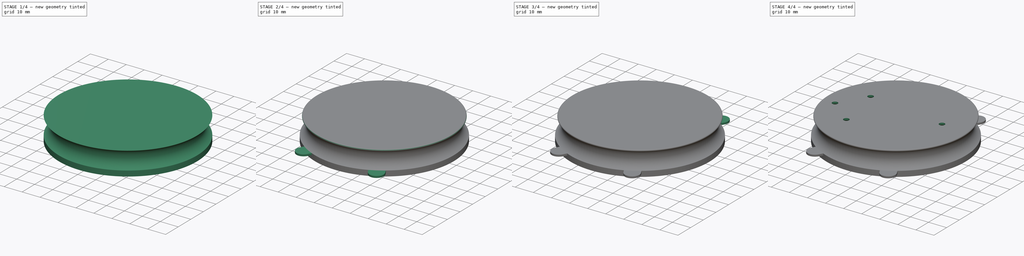
[diagram: build sequence overview — one tinted view per stage of 4, left to right]
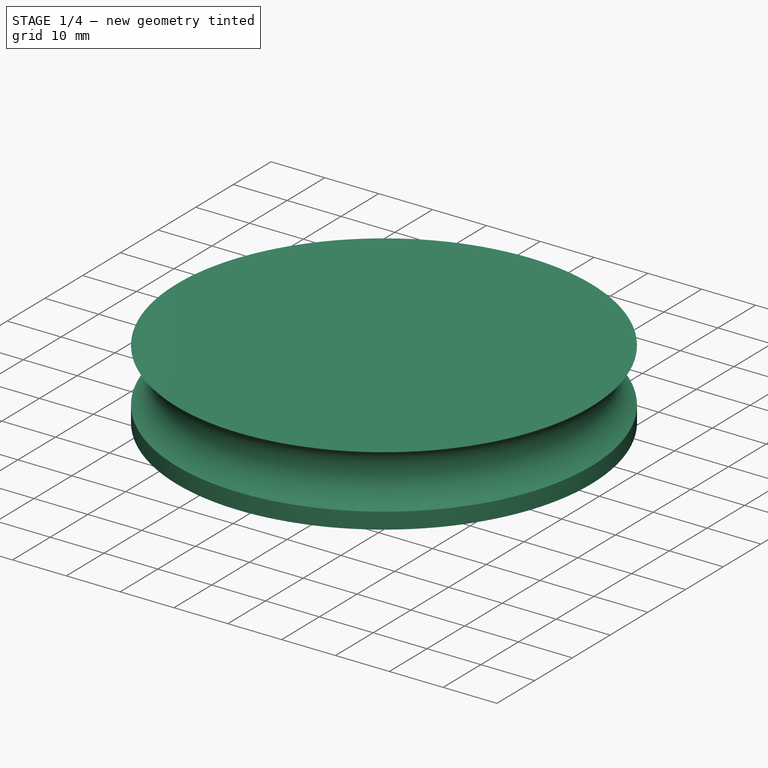
[diagram: stage 1 of 4 — iso view after this stage's code; geometry added in this stage tinted green]
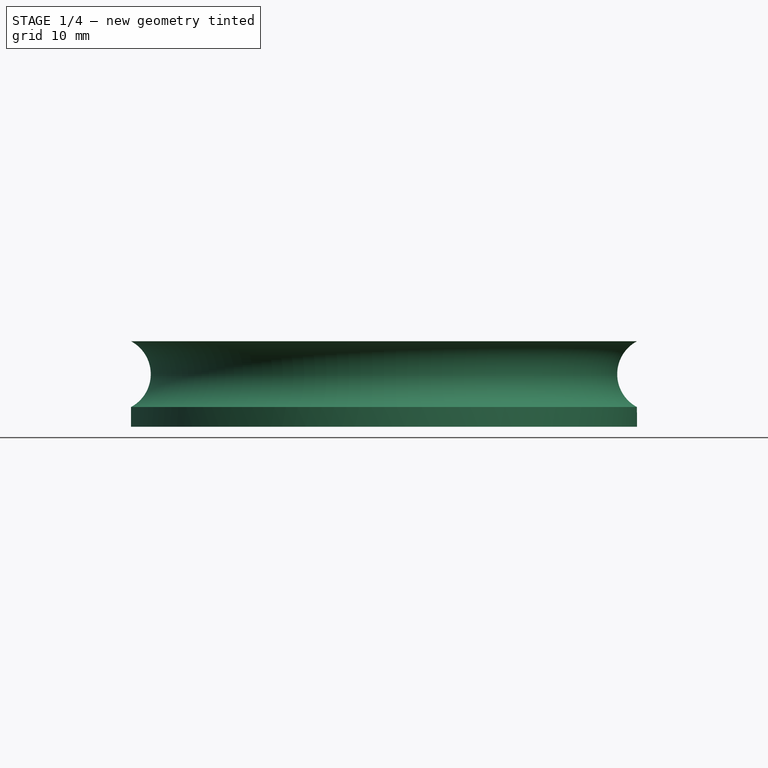
[diagram: stage 1 of 4 — front view after this stage's code; geometry added in this stage tinted green]
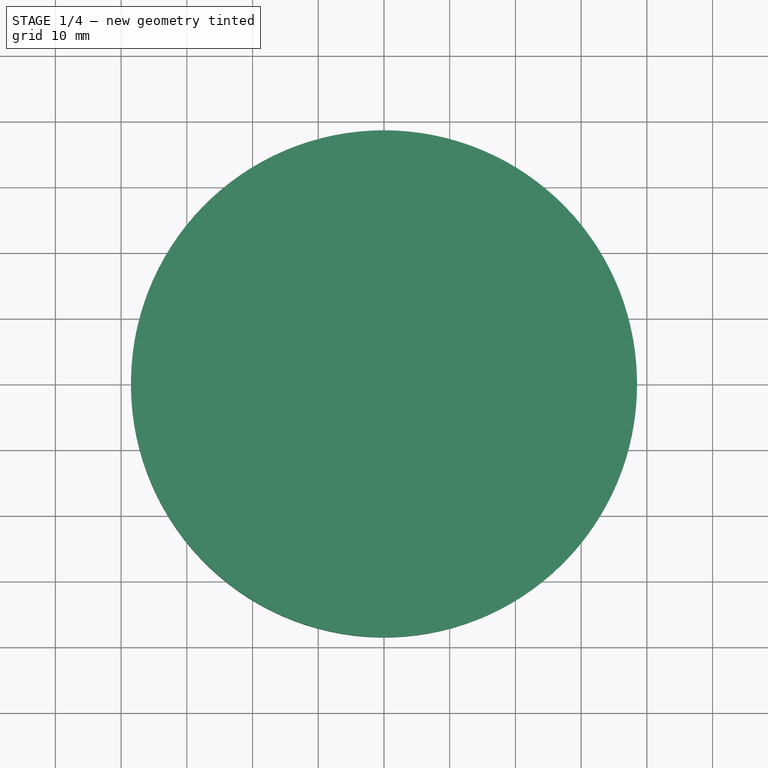
[diagram: stage 1 of 4 — top view after this stage's code; geometry added in this stage tinted green]
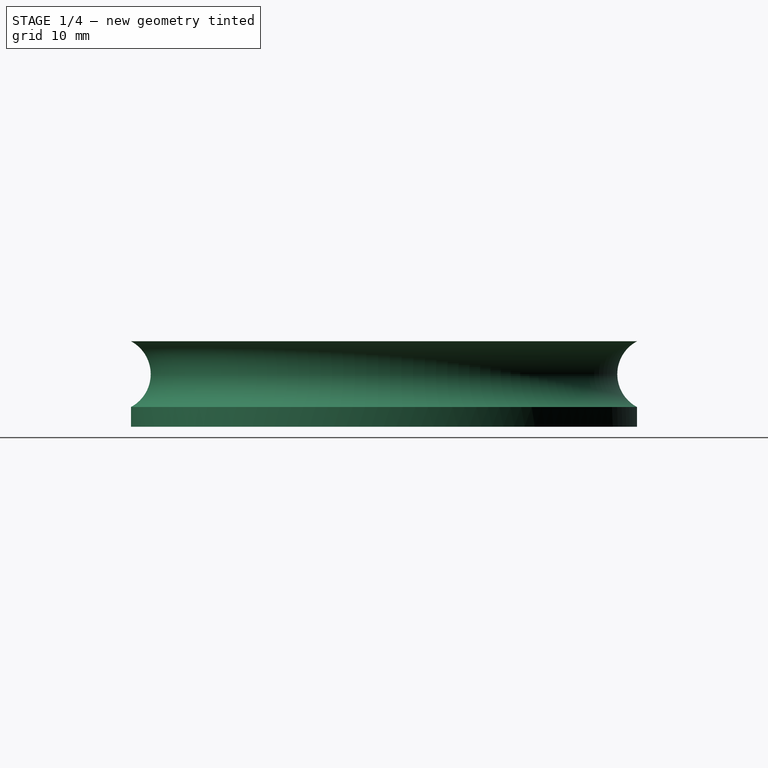
[diagram: stage 1 of 4 — right view after this stage's code; geometry added in this stage tinted green]
FCSTD DOCUMENT  (FreeCAD 1.0R39319 (Git))
Label: Stack_Module_Cover_insert
License: All rights reserved
LicenseURL: https://en.wikipedia.org/wiki/All_rights_reserved
objects: Sketcher::SketchObject×5, PartDesign::Pad×2, PartDesign::Pocket×2, PartDesign::Chamfer×2, PartDesign::Revolution×1, PartDesign::Fillet×1, PartDesign::Mirrored×1, PartDesign::Body×1, PartDesign::CoordinateSystem×1, App::Part×1
note: 38 computed .brp shape members not serialized (recipe doc carries the construction recipe); baked Part::Feature solids carry a one-line shape summary decoded from their .brp

FEATURE [Sketcher::SketchObject] Sketch
  ArcFitTolerance = 1e-06
  AttachmentSupport = -> [XY_Plane001]
  FullyConstrained = true
  MakeInternals = false
  MapMode = 5
  sketch-geometry (1):
    g0: Circle CenterX=0 CenterY=0 CenterZ=0 NormalX=0 NormalY=0 NormalZ=1 AngleXU=0 Radius=38.5
  constraints (2):
    c: Coincident(g0,g-1)
    c: Diameter(g0) = 77
FEATURE [PartDesign::Pad] Pad
  Direction = (0,0,1)
  Length = 2
  Length2 = 10
  Profile = -> Sketch
  ReferenceAxis = -> Sketch [N_Axis]
  Refine = true
  Suppressed = false
  Type = 0
FEATURE [Sketcher::SketchObject] Sketch002
  ArcFitTolerance = 1e-06
  AttachmentSupport = -> [YZ_Plane001]
  ExternalGeometry = -> [Pad]
  FullyConstrained = true
  MakeInternals = false
  MapMode = 5
  Placement = pos=(0,0,0) rot=(0.57735,0.57735,0.57735;2.0944rad)
  sketch-geometry (5):
    g0: LineSegment StartX=38.5 StartY=2 StartZ=0 EndX=0 EndY=2 EndZ=0
    g1: LineSegment StartX=0 StartY=2 StartZ=0 EndX=0 EndY=13 EndZ=0
    g2: LineSegment StartX=38.5 StartY=2 StartZ=0 EndX=38.5 EndY=3 EndZ=0
    g3: ArcOfCircle CenterX=41.1667 CenterY=8 CenterZ=0 NormalX=0 NormalY=0 NormalZ=1 AngleXU=0 Radius=5.66667 StartAngle=2.06075 EndAngle=4.22243
    g4: LineSegment StartX=0 StartY=13 StartZ=0 EndX=38.5 EndY=13 EndZ=0
  constraints (15):
    c: PointOnObject(g0,g-3)
    c: Symmetric(g-3,g-3,g0)
    c: Coincident(g0,g1)
    c: PointOnObject(g1,g-2)
    c: Coincident(g2,g0)
    c: Vertical(g2)
    c: Coincident(g3,g2)
    c: Distance(g2,g1) = 38.5
    c: DistanceY(g2,g2) = 1
    c: DistanceY(g2,g3) = 10
    c: Distance(g3,g2) = -3
    c: PointOnObject(g3,g2)
    c: Coincident(g4,g1)
    c: Coincident(g4,g3)
    c: Horizontal(g4)
FEATURE [PartDesign::Revolution] Revolution
  Angle = 360
  Angle2 = 60
  Axis = (0,0,1)
  Base = (0,0,0)
  BaseFeature = -> Pad
  Profile = -> Sketch002
  ReferenceAxis = -> Sketch002 [V_Axis]
  Refine = true
  Reversed = true
  Suppressed = false
  Type = 0
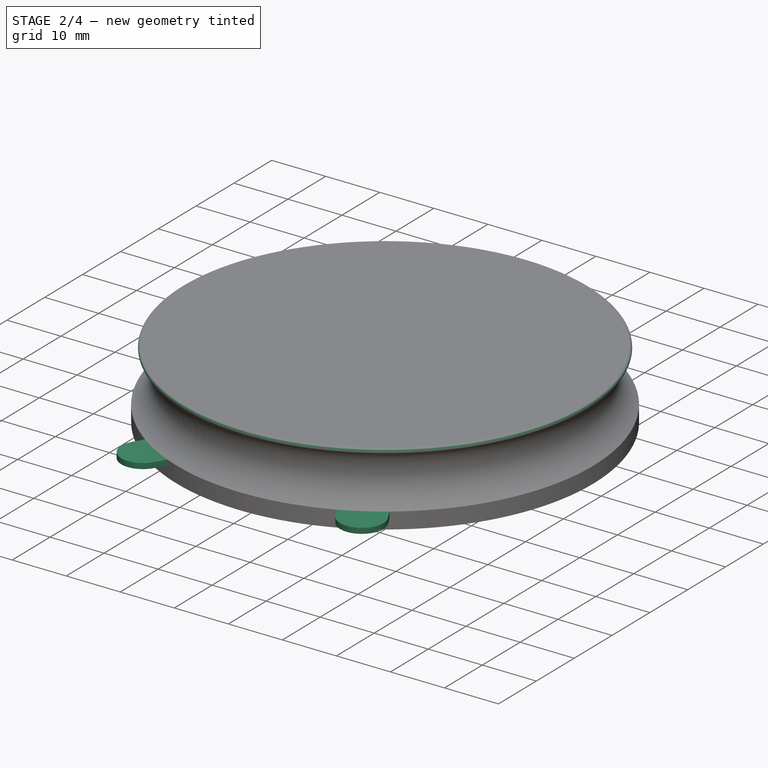
[diagram: stage 2 of 4 — iso view after this stage's code; geometry added in this stage tinted green]
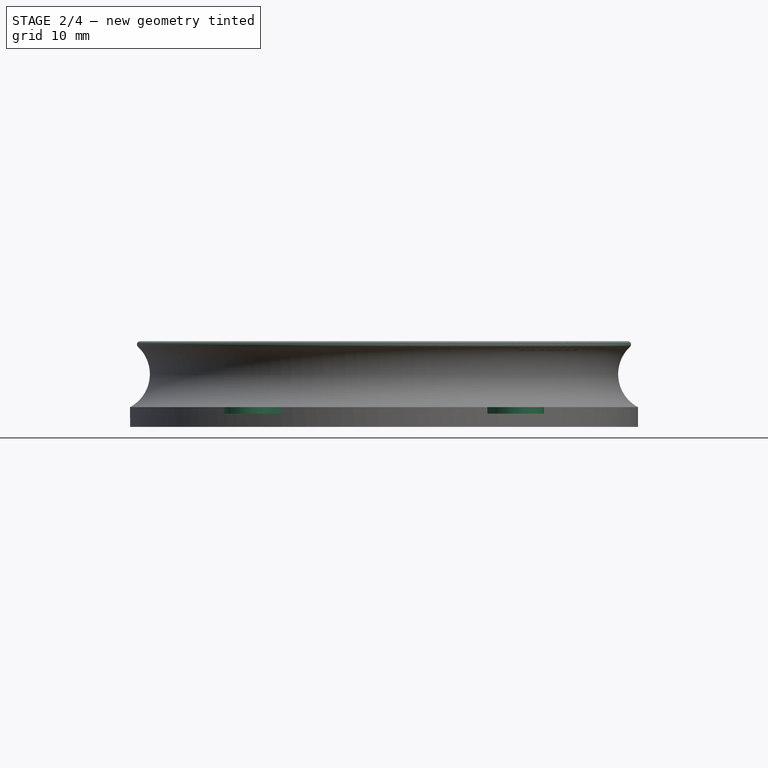
[diagram: stage 2 of 4 — front view after this stage's code; geometry added in this stage tinted green]
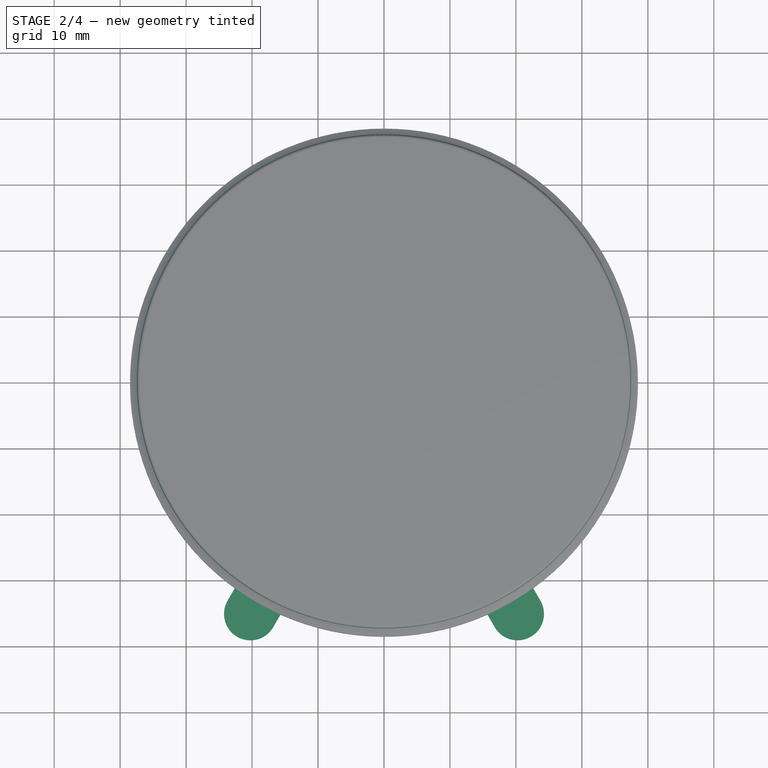
[diagram: stage 2 of 4 — top view after this stage's code; geometry added in this stage tinted green]
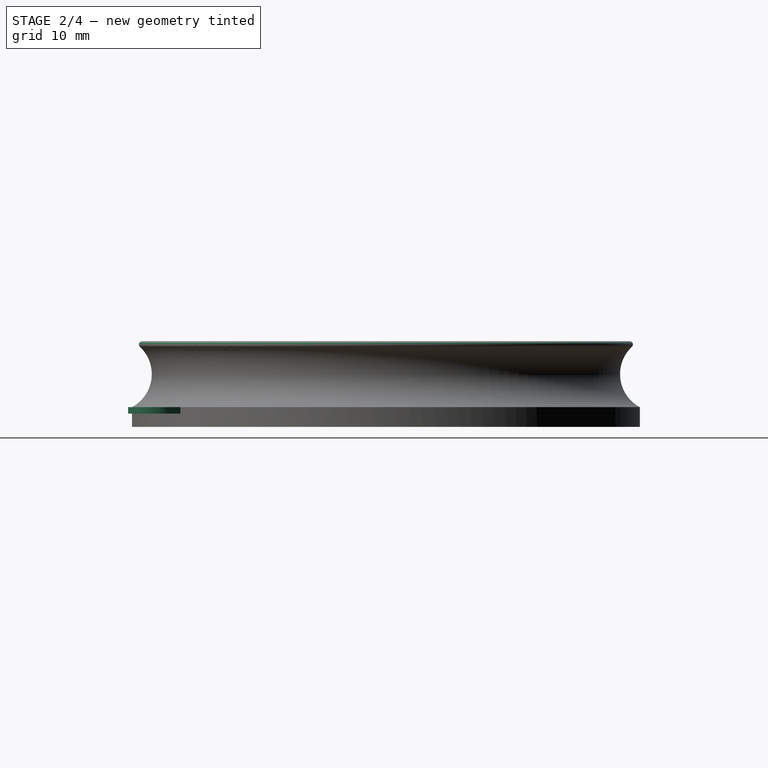
[diagram: stage 2 of 4 — right view after this stage's code; geometry added in this stage tinted green]
FEATURE [PartDesign::Fillet] Fillet
  Base = -> Revolution [Edge5]
  BaseFeature = -> Revolution
  Radius = 0.5
  Refine = true
  SupportTransform = false
  Suppressed = false
  UseAllEdges = false
FEATURE [Sketcher::SketchObject] Sketch003
  ArcFitTolerance = 1e-06
  AttachmentSupport = -> [XY_Plane001]
  ExternalGeometry = -> [Fillet]
  FullyConstrained = true
  MakeInternals = false
  MapMode = 5
  sketch-geometry (10):
    g0: LineSegment StartX=15.6817 StartY=-35.1615 StartZ=0 EndX=16.7859 EndY=-37.074 EndZ=0
    g1: ArcOfCircle CenterX=20.25 CenterY=-35.074 CenterZ=0 NormalX=0 NormalY=0 NormalZ=1 AngleXU=0 Radius=4 StartAngle=3.66519 EndAngle=6.80678
    g2: LineSegment StartX=23.7141 StartY=-33.074 StartZ=0 EndX=22.6099 EndY=-31.1615 EndZ=0
    g3: ArcOfCircle CenterX=0 CenterY=0 CenterZ=0 NormalX=0 NormalY=0 NormalZ=1 AngleXU=0 Radius=38.5 StartAngle=5.1319 EndAngle=5.34007
    g4: LineSegment [constr] StartX=20.25 StartY=-35.074 StartZ=0 EndX=19.25 EndY=-33.342 EndZ=0
    g5: LineSegment StartX=-15.6817 StartY=-35.1615 StartZ=0 EndX=-16.7859 EndY=-37.074 EndZ=0
    g6: ArcOfCircle CenterX=-20.25 CenterY=-35.074 CenterZ=0 NormalX=0 NormalY=0 NormalZ=1 AngleXU=0 Radius=4 StartAngle=2.61799 EndAngle=5.75959
    g7: LineSegment StartX=-23.7141 StartY=-33.074 StartZ=0 EndX=-22.6099 EndY=-31.1615 EndZ=0
    g8: ArcOfCircle CenterX=0 CenterY=0 CenterZ=0 NormalX=0 NormalY=0 NormalZ=1 AngleXU=0 Radius=38.5 StartAngle=4.08471 EndAngle=4.29287
    g9: LineSegment [constr] StartX=-20.25 StartY=-35.074 StartZ=0 EndX=-19.25 EndY=-33.342 EndZ=0
  constraints (28):
    c: Tangent(g0,g1) = -1.5708
    c: Tangent(g1,g2) = -1.5708
    c: Coincident(g3,g0)
    c: Coincident(g3,g2)
    c: Coincident(g3,g-1)
    c: Coincident(g4,g1)
    c: PointOnObject(g4,g3)
    c: PointOnObject(g3,g4)
    c: Parallel(g0,g2)
    c: Distance(g2,g0) = 8
    c: Distance(g4,g4) = 2
    c: Parallel(g0,g4)
    c: PointOnObject(g4,g-3)
    c: Angle(g-2,g4) = 0.523599
    c: Tangent(g5,g6) = 1.5708
    c: Tangent(g6,g7) = 1.5708
    c: Coincident(g8,g5)
    c: Coincident(g8,g7)
    c: Coincident(g9,g6)
    c: PointOnObject(g9,g8)
    c: PointOnObject(g8,g9)
    c: Parallel(g5,g7)
    c: Distance(g7,g5) = 8
    c: Distance(g9,g9) = 2
    c: Parallel(g5,g9)
    c: PointOnObject(g9,g-3)
    c: Angle(g9,g-2) = 0.523599
    c: Coincident(g3,g8)
FEATURE [PartDesign::Pad] Pad001
  BaseFeature = -> Fillet
  Direction = (0,0,1)
  Length = 3
  Length2 = -2
  Profile = -> Sketch003
  ReferenceAxis = -> Sketch003 [N_Axis]
  Refine = true
  Suppressed = false
  Type = 4
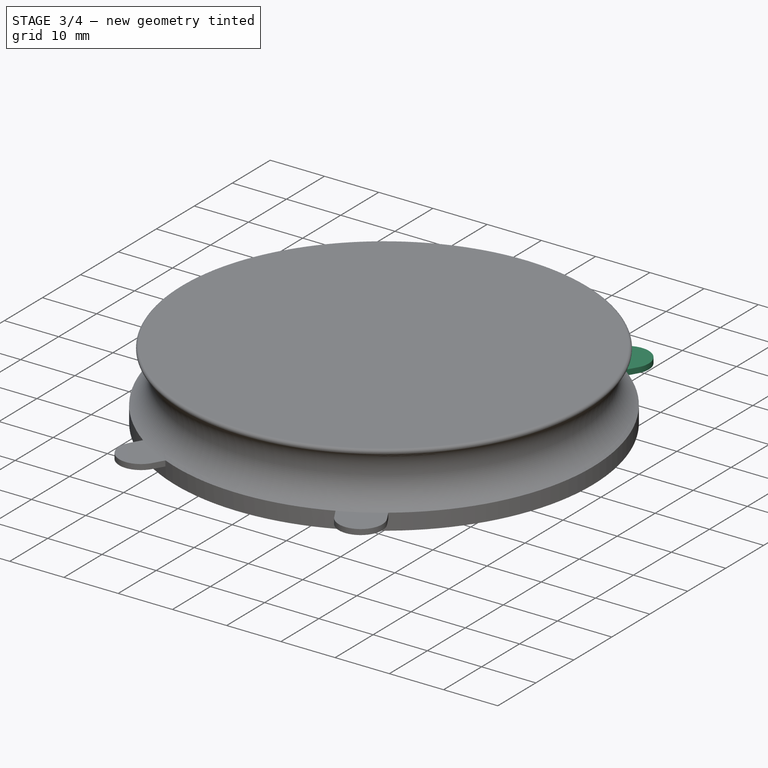
[diagram: stage 3 of 4 — iso view after this stage's code; geometry added in this stage tinted green]
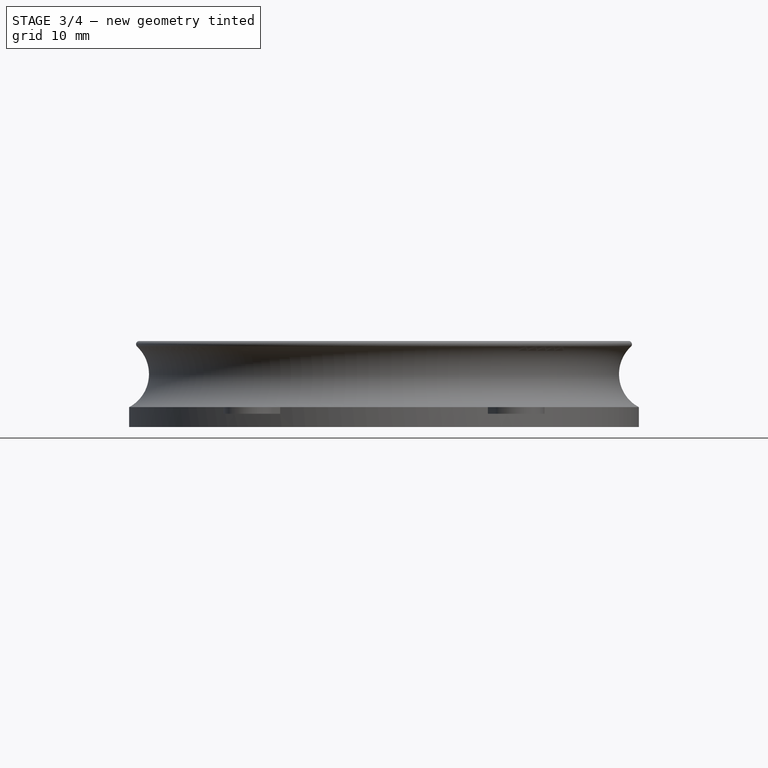
[diagram: stage 3 of 4 — front view after this stage's code; geometry added in this stage tinted green]
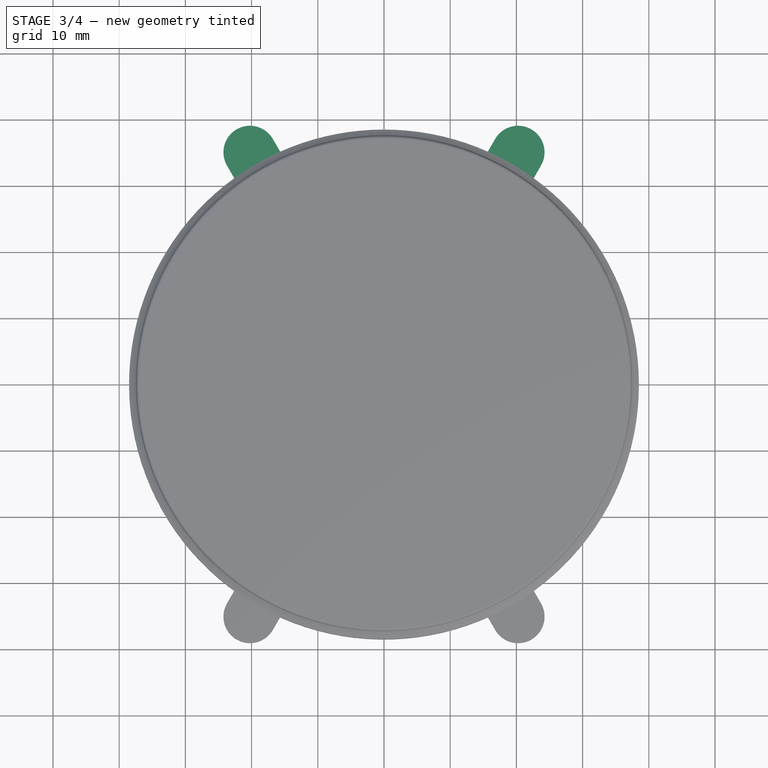
[diagram: stage 3 of 4 — top view after this stage's code; geometry added in this stage tinted green]
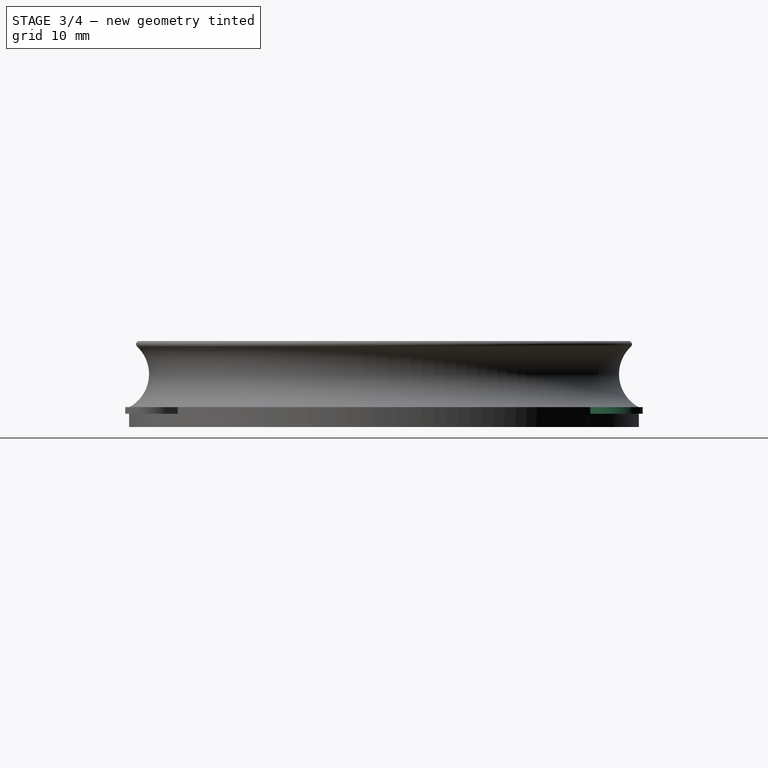
[diagram: stage 3 of 4 — right view after this stage's code; geometry added in this stage tinted green]
FEATURE [PartDesign::Mirrored] Mirrored
  BaseFeature = -> Pad001
  MirrorPlane = -> XZ_Plane001
  Originals = -> [Pad001]
  Refine = true
  Suppressed = false
  TransformMode = 0
FEATURE [Sketcher::SketchObject] Sketch004
  ArcFitTolerance = 1e-06
  AttachmentSupport = -> [Mirrored]
  FullyConstrained = true
  MakeInternals = false
  MapMode = 5
  Placement = pos=(0,0,0) rot=(1,0,0;3.14159rad)
  sketch-geometry (8):
    g0: LineSegment [constr] StartX=0 StartY=0 StartZ=0 EndX=-30.0366 EndY=5.29627 EndZ=0
    g1: Circle CenterX=-30.0366 CenterY=5.29627 CenterZ=0 NormalX=0 NormalY=0 NormalZ=1 AngleXU=0 Radius=3
    g2: Circle CenterX=-20.8451 CenterY=-9.72022 CenterZ=0 NormalX=0 NormalY=0 NormalZ=1 AngleXU=0 Radius=3
    g3: Circle CenterX=-15.686 CenterY=16.8211 CenterZ=0 NormalX=0 NormalY=0 NormalZ=1 AngleXU=0 Radius=3
    g4: Circle CenterX=22.6506 CenterY=-3.99391 CenterZ=0 NormalX=0 NormalY=0 NormalZ=1 AngleXU=0 Radius=3
    g5: LineSegment [constr] StartX=-15.686 StartY=16.8211 StartZ=0 EndX=0 EndY=0 EndZ=0
    g6: LineSegment [constr] StartX=-20.8451 StartY=-9.72022 StartZ=0 EndX=0 EndY=0 EndZ=0
    g7: LineSegment [constr] StartX=0 StartY=0 StartZ=0 EndX=22.6506 EndY=-3.99391 EndZ=0
  constraints (20):
    c: Coincident(g0,g-1)
    c: Angle(g-1,g0) = -0.174533
    c: Coincident(g5,g3)
    c: Coincident(g5,g0)
    c: Coincident(g6,g2)
    c: Coincident(g6,g0)
    c: Coincident(g7,g0)
    c: Coincident(g7,g4)
    c: Angle(g5,g0) = 0.645772
    c: Angle(g0,g6) = 0.610865
    c: Angle(g7,g0) = 3.14159
    c: Distance(g5,g5) = 23
    c: Distance(g6,g6) = 23
    c: Coincident(g0,g1)
    c: Distance(g0,g0) = 30.5
    c: Diameter(g3) = 6
    c: Diameter(g1) = 6
    c: Diameter(g2) = 6
    c: Diameter(g4) = 6
    c: Distance(g7,g7) = 23
FEATURE [PartDesign::Pocket] Pocket
  BaseFeature = -> Mirrored
  Direction = (0,0,1)
  Length = 0
  Length2 = 5
  Offset = -1
  Profile = -> Sketch004
  ReferenceAxis = -> Sketch004 [N_Axis]
  Refine = true
  Suppressed = false
  Type = 3
  UpToFace = -> Mirrored [Face1]
FEATURE [PartDesign::Chamfer] Chamfer
  Angle = 45
  Base = -> Pocket [Edge64,Edge61,Edge63,Edge62]
  BaseFeature = -> Pocket
  ChamferType = 0
  FlipDirection = false
  Refine = true
  Size = 0.5
  Size2 = 1
  SupportTransform = false
  Suppressed = false
  UseAllEdges = false
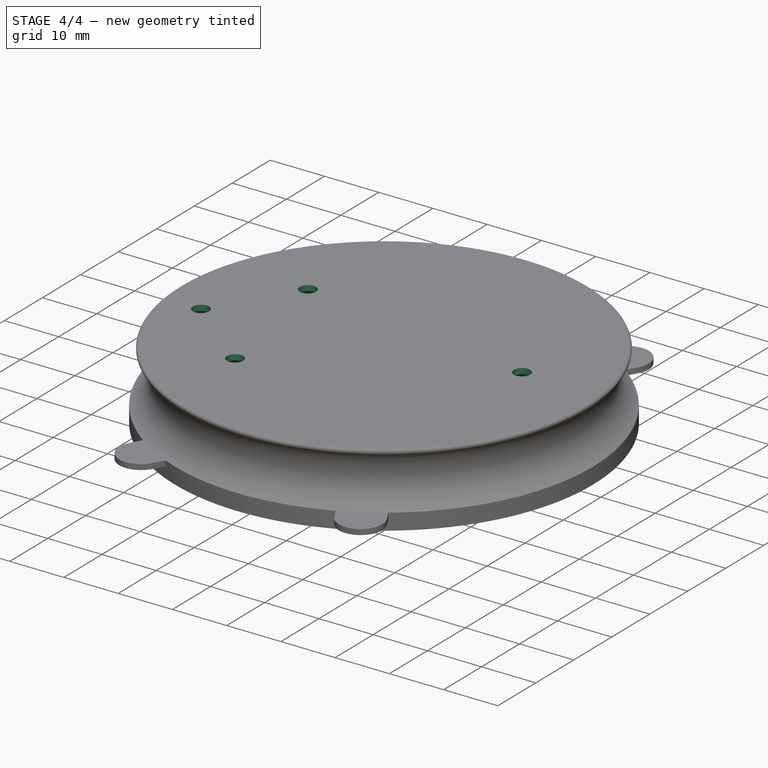
[diagram: stage 4 of 4 — iso view after this stage's code; geometry added in this stage tinted green]
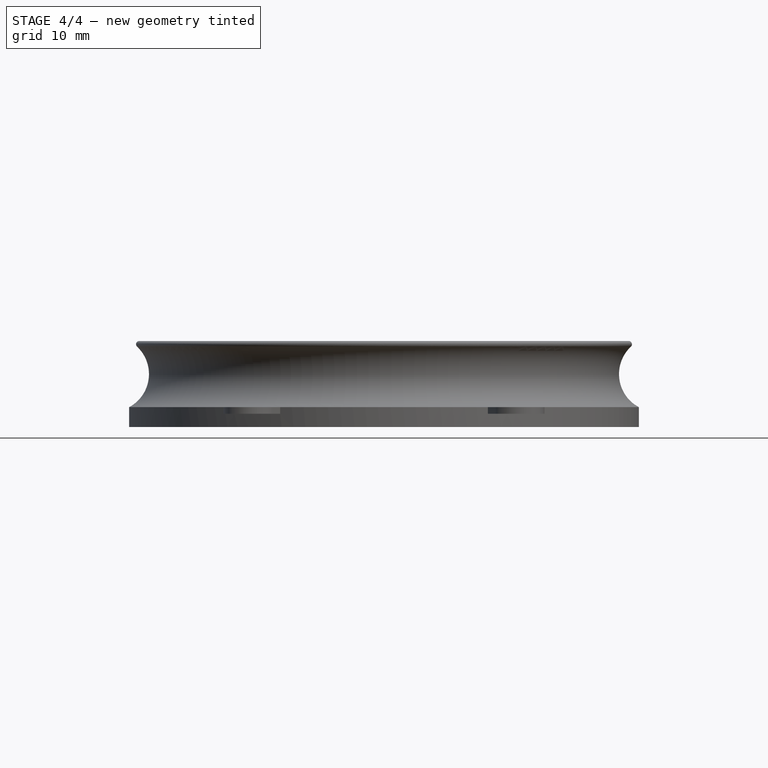
[diagram: stage 4 of 4 — front view after this stage's code; geometry added in this stage tinted green]
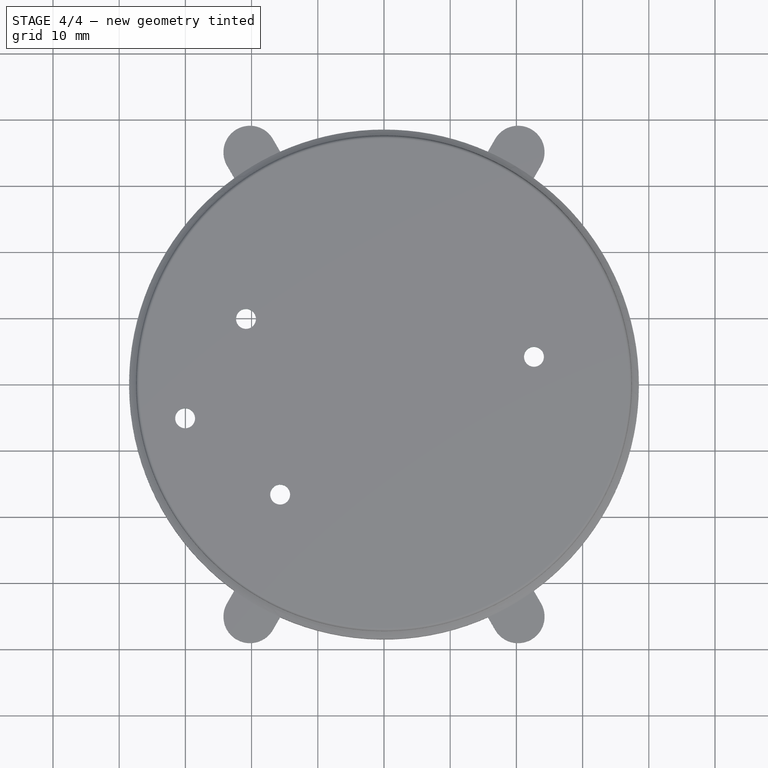
[diagram: stage 4 of 4 — top view after this stage's code; geometry added in this stage tinted green]
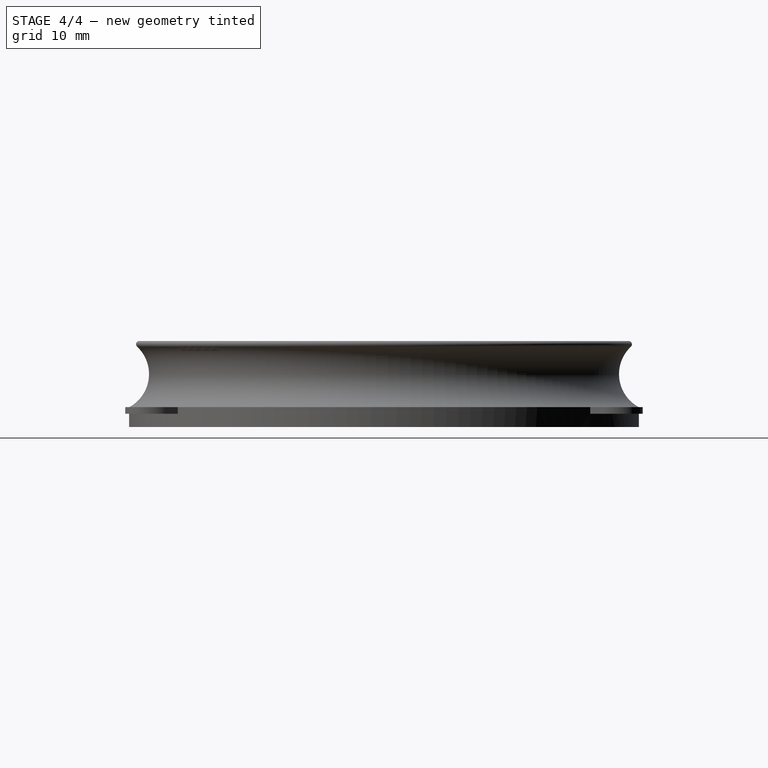
[diagram: stage 4 of 4 — right view after this stage's code; geometry added in this stage tinted green]
FEATURE [PartDesign::Chamfer] Chamfer001
  Angle = 45
  Base = -> Chamfer [Edge70,Edge74,Edge72,Edge34]
  BaseFeature = -> Chamfer
  ChamferType = 0
  FlipDirection = false
  Refine = true
  Size = 1.5
  Size2 = 1
  SupportTransform = false
  Suppressed = false
  UseAllEdges = false
FEATURE [Sketcher::SketchObject] Sketch005
  ArcFitTolerance = 1e-06
  AttachmentSupport = -> [Chamfer001]
  ExternalGeometry = -> [Chamfer001]
  FullyConstrained = true
  MakeInternals = false
  MapMode = 5
  Placement = pos=(0,0,12) rot=(1,0,0;3.14159rad)
  sketch-geometry (4):
    g0: Circle CenterX=-15.686 CenterY=16.8211 CenterZ=0 NormalX=0 NormalY=0 NormalZ=1 AngleXU=0 Radius=1.50001
    g1: Circle CenterX=-30.0366 CenterY=5.29627 CenterZ=0 NormalX=0 NormalY=0 NormalZ=1 AngleXU=0 Radius=1.50001
    g2: Circle CenterX=-20.8451 CenterY=-9.72022 CenterZ=0 NormalX=0 NormalY=0 NormalZ=1 AngleXU=0 Radius=1.50001
    g3: Circle CenterX=22.6506 CenterY=-3.99391 CenterZ=0 NormalX=0 NormalY=0 NormalZ=1 AngleXU=0 Radius=1.50001
  constraints (8):
    c: Coincident(g0,g-4)
    c: Coincident(g1,g-5)
    c: Coincident(g2,g-6)
    c: Coincident(g3,g-3)
    c: Tangent(g-4,g0)
    c: Tangent(g-5,g1)
    c: Tangent(g-6,g2)
    c: Tangent(g-3,g3)
FEATURE [PartDesign::Pocket] Pocket001
  BaseFeature = -> Chamfer001
  Direction = (0,0,1)
  Length = 5
  Length2 = 5
  Profile = -> Sketch005
  ReferenceAxis = -> Sketch005 [N_Axis]
  Refine = true
  Suppressed = false
  Type = 1
FEATURE [PartDesign::Body] Body  label="Stack_Module_Cover_insert001"
  AllowCompound = false
  Group = -> [Sketch,Pad,Sketch002,Revolution,Fillet,Sketch003,Pad001,Mirrored,Sketch004,Pocket,Chamfer,Chamfer001,Sketch005,Pocket001]
  Origin = -> Origin001
  Tip = -> Pocket001
FEATURE [PartDesign::CoordinateSystem] LCS_1
  AttacherType = Attacher::AttachEngine3D
  AttachmentOffset = pos=(0,0,0) rot=(0,0,1;0.174533rad)
  AttachmentSupport = -> [Pocket001]
  MapMode = 11
  Placement = pos=(0,0,0) rot=(0,0,1;3.31613rad)
FEATURE [App::Part] Part  label="Stack_Module_Cover_insert"
  Group = -> [Body,LCS_1]
  Origin = -> Origin
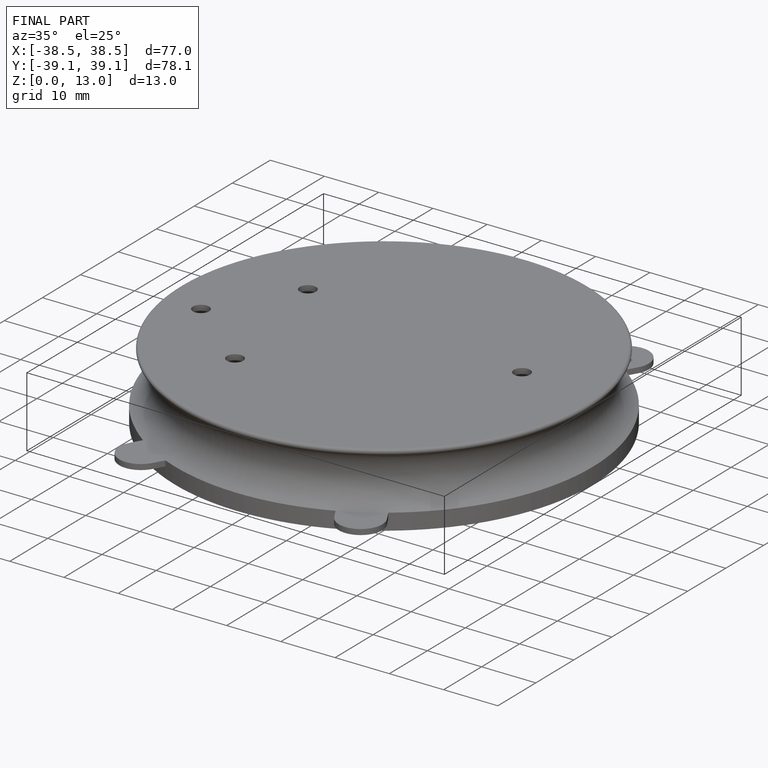
[diagram: finished part — iso view with bounding-box wireframe]
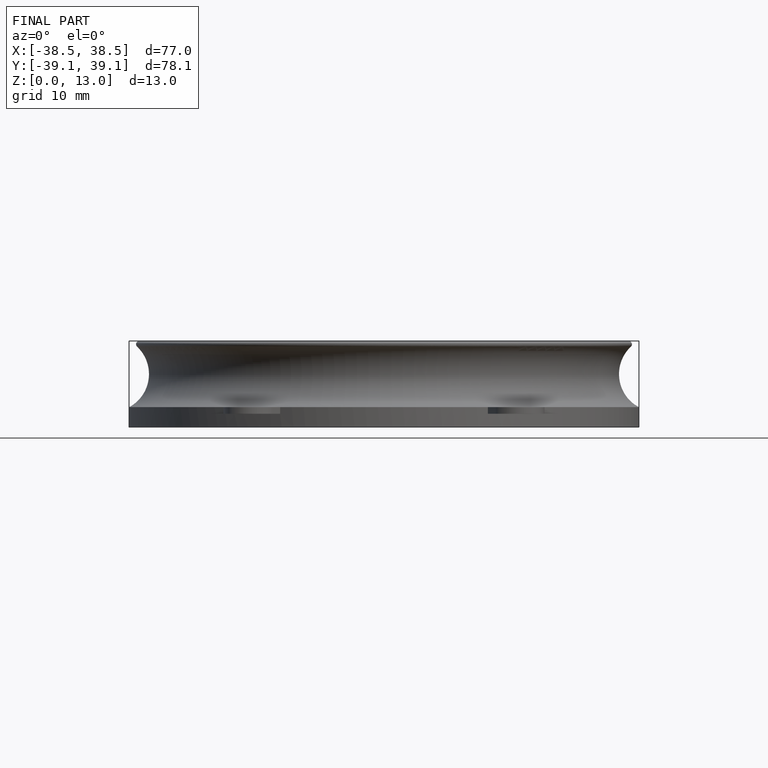
[diagram: finished part — front view with bounding-box wireframe]
